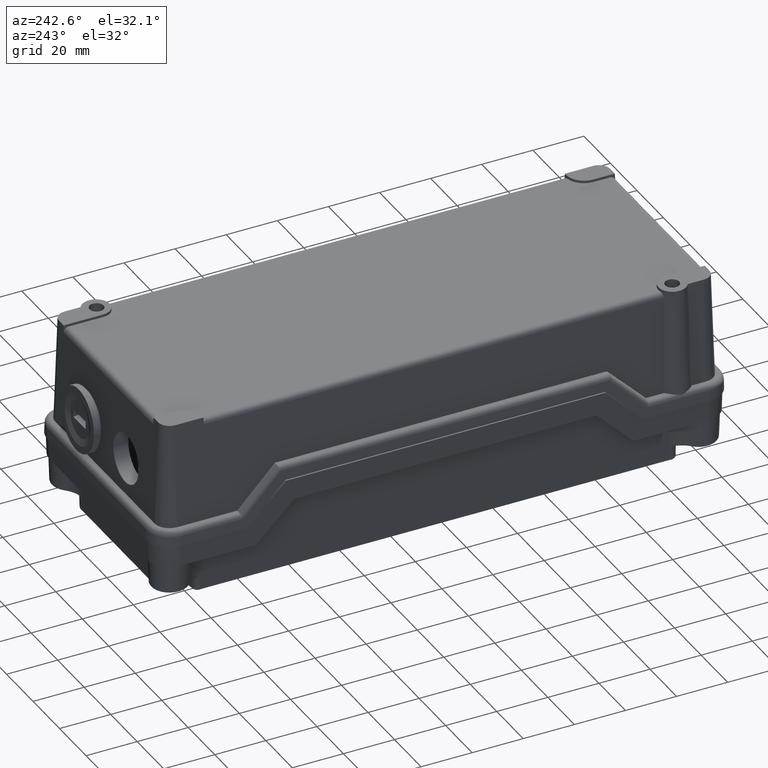
[diagram: clean part render]
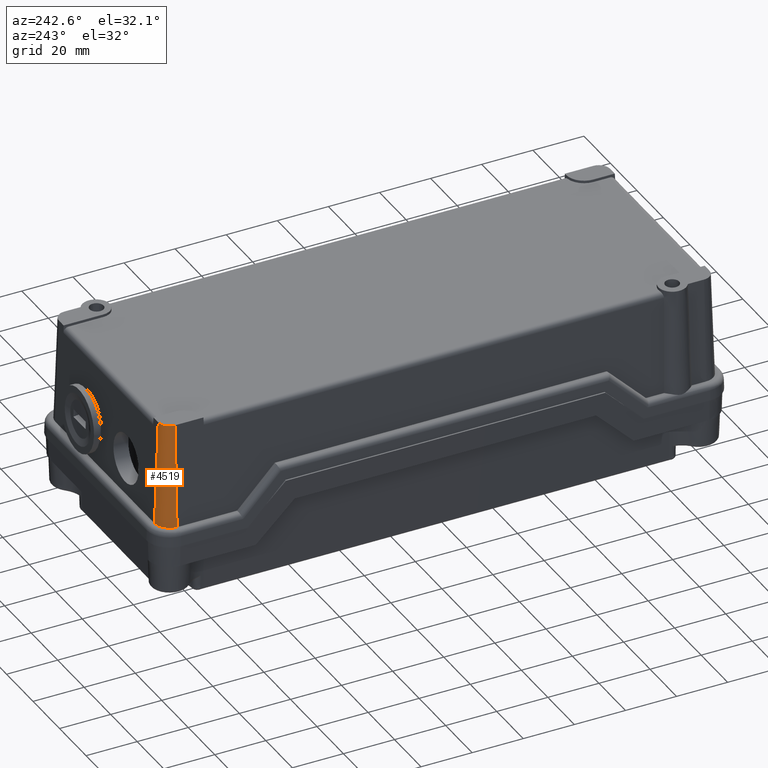
[diagram: same view with one face highlighted and labeled with its STEP entity id]
A machine part, auxiliary view. The second image highlights one B-rep face of the part: STEP entity #4519.
In plain terms, the highlighted conical surface has half-angle 2 deg.
Its self-contained STEP definition (entity closure, byte-faithful):
#909=CARTESIAN_POINT('',(-6.114908437115695,194.890062392485990,6.000000000000005));
#910=VERTEX_POINT('',#909);
#917=CARTESIAN_POINT('',(-6.114908437115698,193.458310843324310,47.0));
#918=VERTEX_POINT('',#917);
#919=CARTESIAN_POINT('',(-6.114908437115695,194.890062392485990,6.000000000000005));
#920=DIRECTION('',(-8.659877E-017,-0.034899496702501,0.999390827019096));
#921=VECTOR('',#920,41.024991316251686);
#922=LINE('',#919,#921);
#923=EDGE_CURVE('',#910,#918,#922,.T.);
#2243=CARTESIAN_POINT('',(-10.473632271003513,189.099587009436500,47.0));
#2244=VERTEX_POINT('',#2243);
#2251=CARTESIAN_POINT('',(-11.905383820165172,189.099587009436500,6.000000000000005));
#2252=VERTEX_POINT('',#2251);
#2253=CARTESIAN_POINT('',(-10.473632271003513,189.099587009436500,47.0));
#2254=DIRECTION('',(-0.034899496702501,0.0,-0.999390827019096));
#2255=VECTOR('',#2254,41.024991316251686);
#2256=LINE('',#2253,#2255);
#2257=EDGE_CURVE('',#2244,#2252,#2256,.T.);
#4155=CARTESIAN_POINT('',(-6.114908437115695,189.099587009436500,47.0));
#4156=DIRECTION('',(0.0,0.0,-1.0));
#4157=DIRECTION('',(0.0,1.0,0.0));
#4158=AXIS2_PLACEMENT_3D('',#4155,#4156,#4157);
#4159=CIRCLE('',#4158,4.358723833887817);
#4160=EDGE_CURVE('',#2244,#918,#4159,.T.);
#4382=CARTESIAN_POINT('',(-6.114908437115695,189.099587009436500,6.000000000000005));
#4383=DIRECTION('',(0.0,0.0,1.0));
#4384=DIRECTION('',(0.0,1.0,0.0));
#4385=AXIS2_PLACEMENT_3D('',#4382,#4383,#4384);
#4386=CIRCLE('',#4385,5.790475383049475);
#4387=EDGE_CURVE('',#910,#2252,#4386,.T.);
#4508=CARTESIAN_POINT('',(-6.114908437115695,189.099587009436500,46.000000000000007));
#4509=DIRECTION('',(0.0,0.0,-1.0));
#4510=DIRECTION('',(0.0,1.0,0.0));
#4511=AXIS2_PLACEMENT_3D('',#4508,#4509,#4510);
#4512=CONICAL_SURFACE('',#4511,4.393644603379566,2.0);
#4513=ORIENTED_EDGE('',*,*,#4387,.T.);
#4514=ORIENTED_EDGE('',*,*,#2257,.F.);
#4515=ORIENTED_EDGE('',*,*,#4160,.T.);
#4516=ORIENTED_EDGE('',*,*,#923,.F.);
#4517=EDGE_LOOP('',(#4513,#4514,#4515,#4516));
#4518=FACE_OUTER_BOUND('',#4517,.T.);
#4519=ADVANCED_FACE('',(#4518),#4512,.T.);